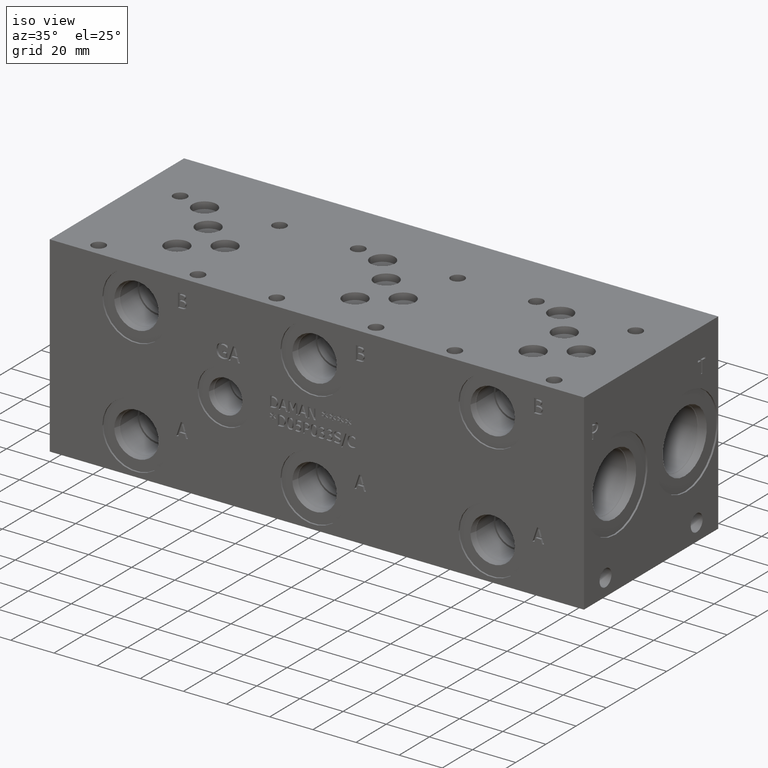
[diagram: clean part render]
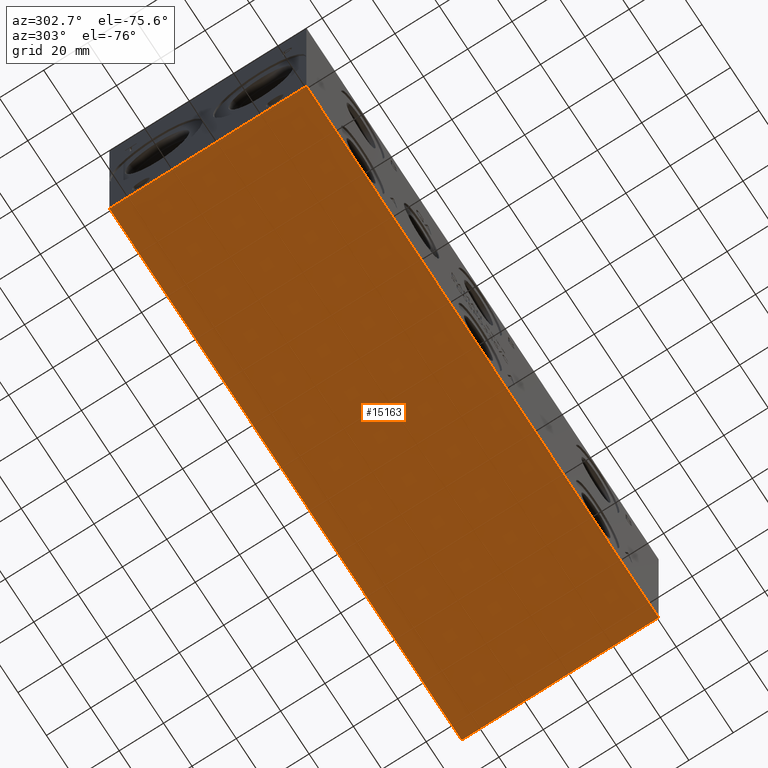
[diagram: tour spotlight — one face highlighted and labeled with its STEP entity id]
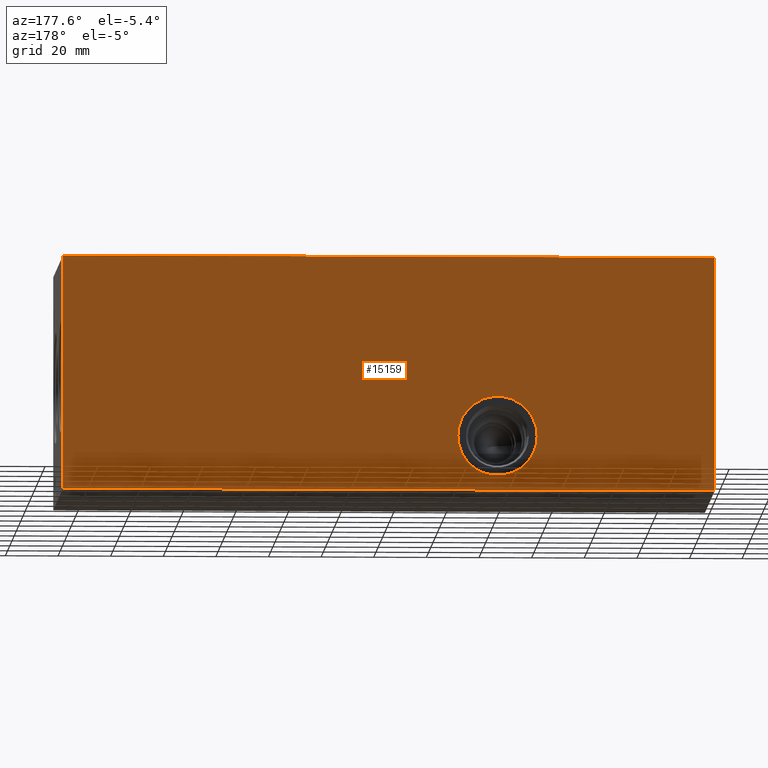
[diagram: tour spotlight — one face highlighted and labeled with its STEP entity id]
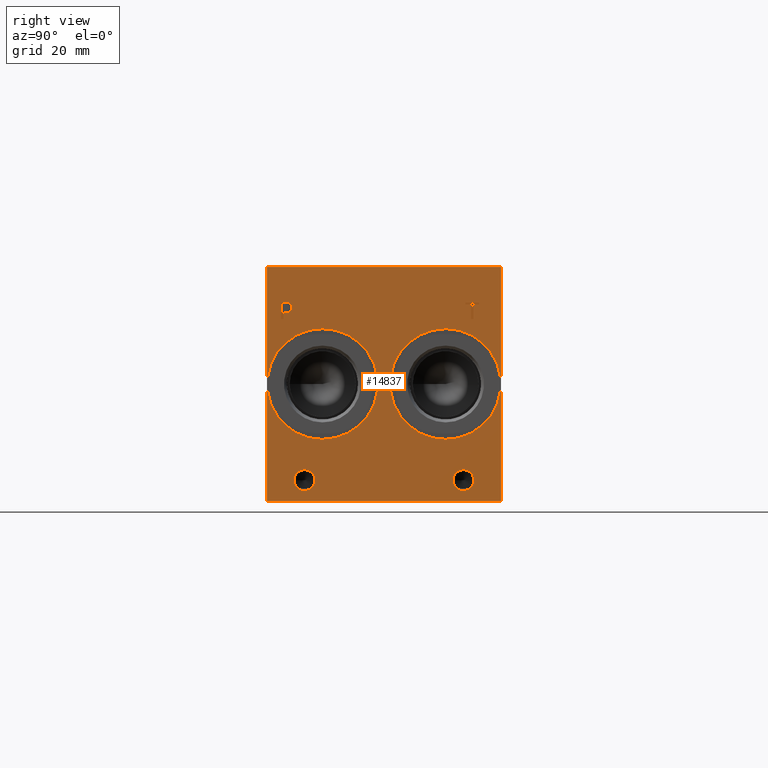
[diagram: tour spotlight — one face highlighted and labeled with its STEP entity id]
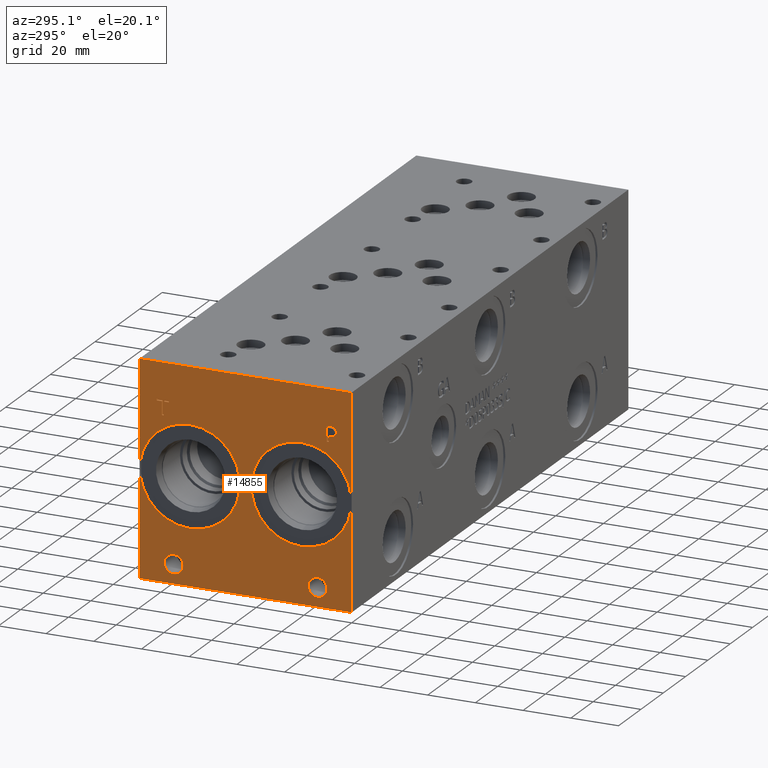
[diagram: tour spotlight — one face highlighted and labeled with its STEP entity id]
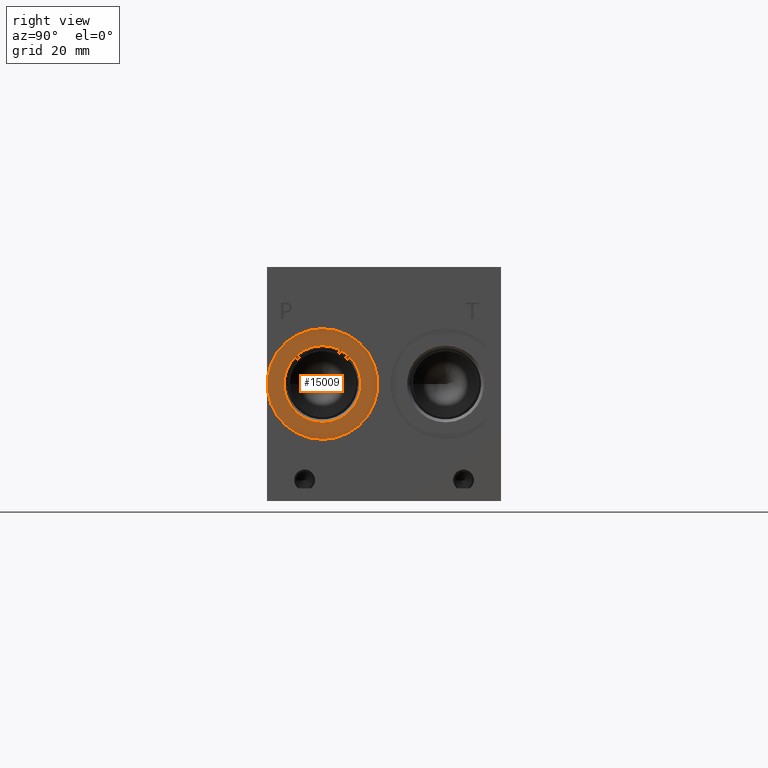
[diagram: tour spotlight — one face highlighted and labeled with its STEP entity id]
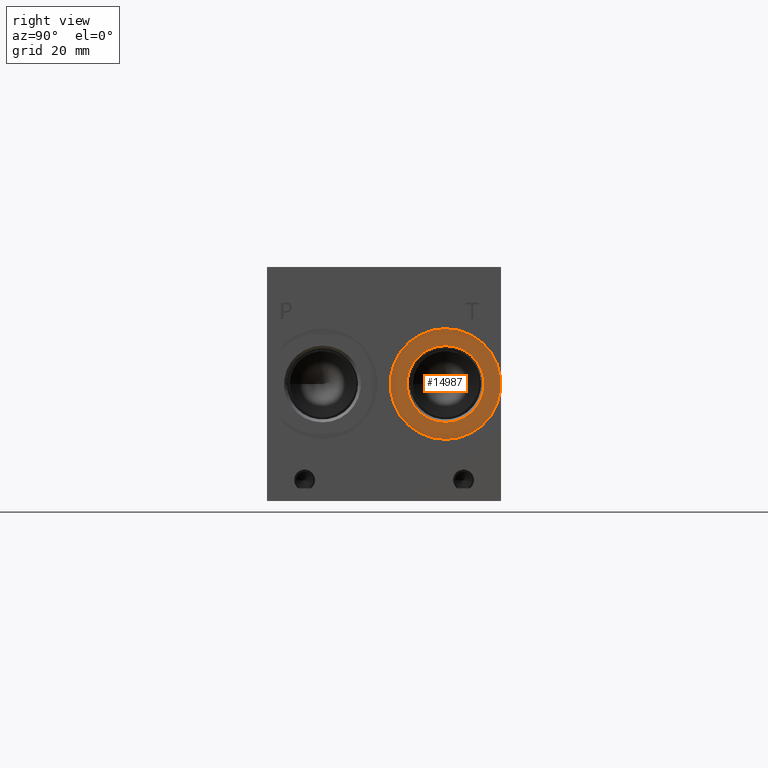
[diagram: tour spotlight — one face highlighted and labeled with its STEP entity id]
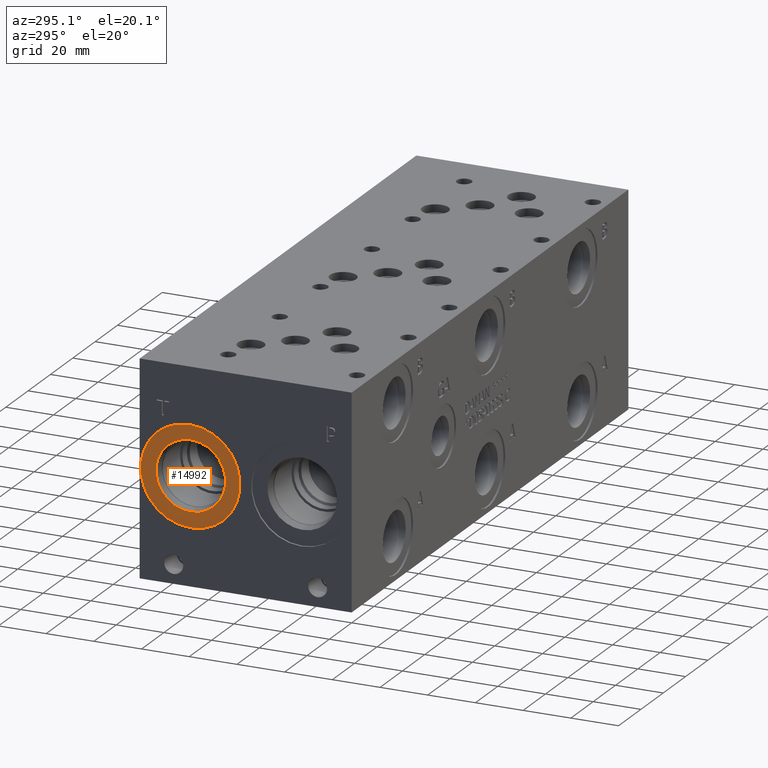
[diagram: tour spotlight — one face highlighted and labeled with its STEP entity id]
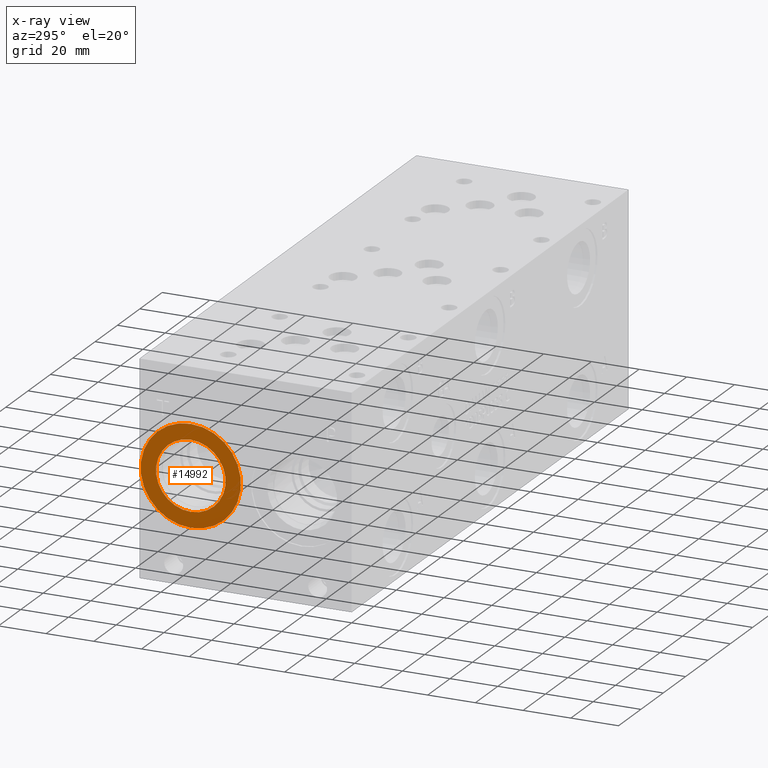
[diagram: x-ray of the same camera — body ghosted, this tour face saturated]
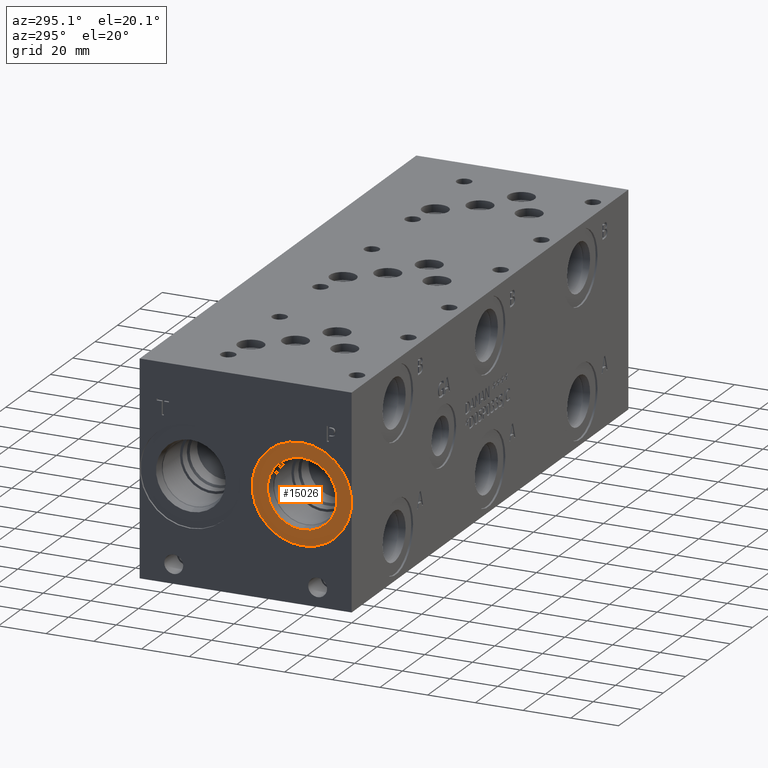
[diagram: tour spotlight — one face highlighted and labeled with its STEP entity id]
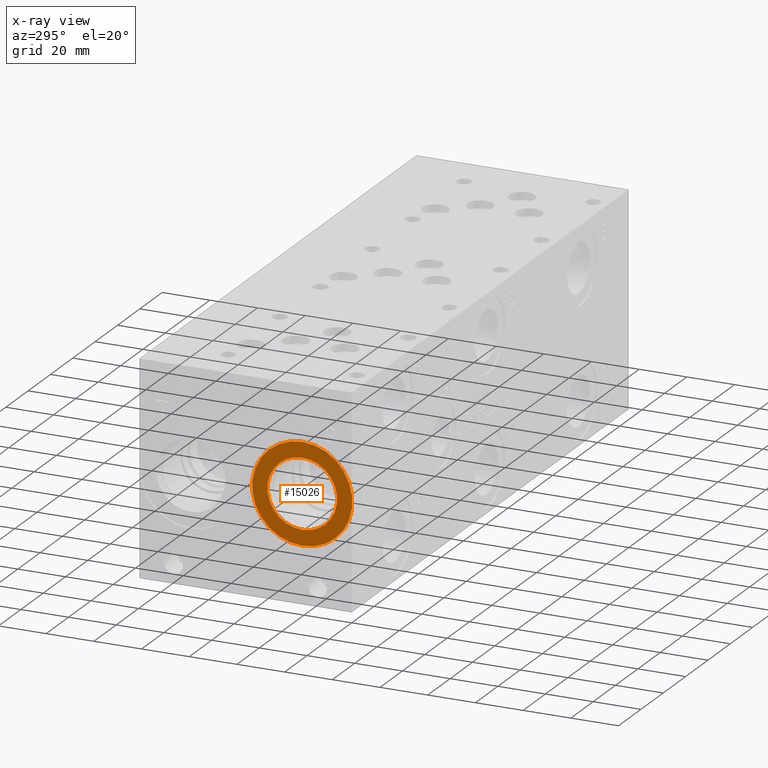
[diagram: x-ray of the same camera — body ghosted, this tour face saturated]
A machine part: a face-by-face anatomy tour. The part has 785 B-rep faces; the first image is the clean iso view, then the 8 largest visible faces are spotlighted one at a time (largest first), each with its STEP entity span.

Face 1 — auxiliary view, entity #15163. In plain terms, the highlighted planar face has unit normal (0, 0, 1).
Definition (entity closure, byte-faithful):
#2119=FACE_OUTER_BOUND('',#3035,.T.);
#3035=EDGE_LOOP('',(#13436,#13437,#13438,#13439));
#3069=LINE('',#19500,#4375);
#3990=LINE('',#24305,#5296);
#4025=LINE('',#24528,#5331);
#4340=LINE('',#26418,#5646);
#4375=VECTOR('',#16220,10.);
#5296=VECTOR('',#17727,10.);
#5331=VECTOR('',#17798,10.);
#5646=VECTOR('',#19419,10.);
#5670=VERTEX_POINT('',#19498);
#5671=VERTEX_POINT('',#19499);
#6542=VERTEX_POINT('',#24304);
#6584=VERTEX_POINT('',#24527);
#7140=EDGE_CURVE('',#5670,#5671,#3069,.T.);
#8421=EDGE_CURVE('',#5671,#6542,#3990,.T.);
#8480=EDGE_CURVE('',#6584,#5670,#4025,.T.);
#9216=EDGE_CURVE('',#6542,#6584,#4340,.T.);
#13436=ORIENTED_EDGE('',*,*,#7140,.F.);
#13437=ORIENTED_EDGE('',*,*,#8480,.F.);
#13438=ORIENTED_EDGE('',*,*,#9216,.F.);
#13439=ORIENTED_EDGE('',*,*,#8421,.F.);
#13839=PLANE('',#16158);
#15163=ADVANCED_FACE('',(#2119),#13839,.F.);
#16158=AXIS2_PLACEMENT_3D('',#26423,#19427,#19428);
#16220=DIRECTION('',(1.,0.,0.));
#17727=DIRECTION('',(0.,1.,0.));
#17798=DIRECTION('',(0.,-1.,0.));
#19419=DIRECTION('',(-1.,0.,0.));
#19427=DIRECTION('center_axis',(0.,0.,1.));
#19428=DIRECTION('ref_axis',(1.,0.,0.));
#19498=CARTESIAN_POINT('',(0.,0.,0.));
#19499=CARTESIAN_POINT('',(247.65,0.,0.));
#19500=CARTESIAN_POINT('',(0.,0.,0.));
#24304=CARTESIAN_POINT('',(247.65,88.9,0.));
#24305=CARTESIAN_POINT('',(247.65,0.,0.));
#24527=CARTESIAN_POINT('',(0.,88.9,0.));
#24528=CARTESIAN_POINT('',(0.,88.9,0.));
#26418=CARTESIAN_POINT('',(247.65,88.9,0.));
#26423=CARTESIAN_POINT('Origin',(123.825,44.45,0.));

Face 2 — auxiliary view, entity #15159. In plain terms, the highlighted planar face has unit normal (0, 1, 0).
Definition (entity closure, byte-faithful):
#429=CIRCLE('',#15563,15.08);
#430=CIRCLE('',#15564,15.08);
#1310=FACE_BOUND('',#3007,.T.);
#2115=FACE_OUTER_BOUND('',#3006,.T.);
#3006=EDGE_LOOP('',(#13364,#13365,#13366,#13367));
#3007=EDGE_LOOP('',(#13368,#13369));
#3991=LINE('',#24307,#5297);
#4027=LINE('',#24531,#5333);
#4340=LINE('',#26418,#5646);
#4341=LINE('',#26419,#5647);
#5297=VECTOR('',#17728,10.);
#5333=VECTOR('',#17800,10.);
#5646=VECTOR('',#19419,10.);
#5647=VECTOR('',#19420,10.);
#6542=VERTEX_POINT('',#24304);
#6543=VERTEX_POINT('',#24306);
#6584=VERTEX_POINT('',#24527);
#6585=VERTEX_POINT('',#24529);
#6698=VERTEX_POINT('',#25235);
#6699=VERTEX_POINT('',#25236);
#8422=EDGE_CURVE('',#6542,#6543,#3991,.T.);
#8482=EDGE_CURVE('',#6584,#6585,#4027,.T.);
#8665=EDGE_CURVE('',#6698,#6699,#429,.T.);
#8666=EDGE_CURVE('',#6699,#6698,#430,.T.);
#9216=EDGE_CURVE('',#6542,#6584,#4340,.T.);
#9217=EDGE_CURVE('',#6543,#6585,#4341,.T.);
#13364=ORIENTED_EDGE('',*,*,#9216,.T.);
#13365=ORIENTED_EDGE('',*,*,#8482,.T.);
#13366=ORIENTED_EDGE('',*,*,#9217,.F.);
#13367=ORIENTED_EDGE('',*,*,#8422,.F.);
#13368=ORIENTED_EDGE('',*,*,#8665,.T.);
#13369=ORIENTED_EDGE('',*,*,#8666,.T.);
#13835=PLANE('',#16154);
#15159=ADVANCED_FACE('',(#2115,#1310),#13835,.T.);
#15563=AXIS2_PLACEMENT_3D('',#25237,#18053,#18054);
#15564=AXIS2_PLACEMENT_3D('',#25238,#18055,#18056);
#16154=AXIS2_PLACEMENT_3D('',#26417,#19417,#19418);
#17728=DIRECTION('',(0.,0.,1.));
#17800=DIRECTION('',(0.,0.,1.));
#18053=DIRECTION('center_axis',(0.,-1.,0.));
#18054=DIRECTION('ref_axis',(1.,0.,0.));
#18055=DIRECTION('center_axis',(0.,-1.,0.));
#18056=DIRECTION('ref_axis',(1.,0.,0.));
#19417=DIRECTION('center_axis',(0.,1.,0.));
#19418=DIRECTION('ref_axis',(-1.,0.,0.));
#19419=DIRECTION('',(-1.,0.,0.));
#19420=DIRECTION('',(-1.,0.,0.));
#24304=CARTESIAN_POINT('',(247.65,88.9,0.));
#24306=CARTESIAN_POINT('',(247.65,88.9,88.9));
#24307=CARTESIAN_POINT('',(247.65,88.9,0.));
#24527=CARTESIAN_POINT('',(0.,88.9,0.));
#24529=CARTESIAN_POINT('',(0.,88.9,88.9));
#24531=CARTESIAN_POINT('',(0.,88.9,0.));
#25235=CARTESIAN_POINT('',(97.63,88.9,20.6502));
#25236=CARTESIAN_POINT('',(67.47,88.9,20.6502));
#25237=CARTESIAN_POINT('Origin',(82.55,88.9,20.6502));
#25238=CARTESIAN_POINT('Origin',(82.55,88.9,20.6502));
#26417=CARTESIAN_POINT('Origin',(247.65,88.9,0.));
#26418=CARTESIAN_POINT('',(247.65,88.9,0.));
#26419=CARTESIAN_POINT('',(247.65,88.9,88.9));

Face 3 — right view, entity #14837. In plain terms, the highlighted planar face has unit normal (1, 0, 0).
Definition (entity closure, byte-faithful):
#413=CIRCLE('',#15484,21.0185);
#414=CIRCLE('',#15485,21.0185);
#415=CIRCLE('',#15486,21.0185);
#416=CIRCLE('',#15487,21.0185);
#417=CIRCLE('',#15488,3.9624);
#418=CIRCLE('',#15489,3.9624);
#419=CIRCLE('',#15490,3.9624);
#420=CIRCLE('',#15491,3.9624);
#1136=B_SPLINE_CURVE_WITH_KNOTS('',2,(#24206,#24207,#24208,#24209),
 .UNSPECIFIED.,.F.,.F.,(3,1,3),(0.,1.,2.),.UNSPECIFIED.);
#1138=B_SPLINE_CURVE_WITH_KNOTS('',2,(#24227,#24228,#24229,#24230),
 .UNSPECIFIED.,.F.,.F.,(3,1,3),(0.,1.,2.),.UNSPECIFIED.);
#1140=B_SPLINE_CURVE_WITH_KNOTS('',2,(#24276,#24277,#24278,#24279),
 .UNSPECIFIED.,.F.,.F.,(3,1,3),(0.,1.,2.),.UNSPECIFIED.);
#1142=B_SPLINE_CURVE_WITH_KNOTS('',2,(#24294,#24295,#24296,#24297),
 .UNSPECIFIED.,.F.,.F.,(3,1,3),(0.,1.,2.),.UNSPECIFIED.);
#1251=FACE_BOUND('',#2626,.T.);
#1252=FACE_BOUND('',#2627,.T.);
#1253=FACE_BOUND('',#2628,.T.);
#1254=FACE_BOUND('',#2629,.T.);
#1255=FACE_BOUND('',#2630,.T.);
#1256=FACE_BOUND('',#2631,.T.);
#1793=FACE_OUTER_BOUND('',#2625,.T.);
#2625=EDGE_LOOP('',(#11757,#11758,#11759,#11760));
#2626=EDGE_LOOP('',(#11761,#11762,#11763,#11764,#11765,#11766,#11767,#11768));
#2627=EDGE_LOOP('',(#11769,#11770));
#2628=EDGE_LOOP('',(#11771,#11772));
#2629=EDGE_LOOP('',(#11773,#11774));
#2630=EDGE_LOOP('',(#11775,#11776));
#2631=EDGE_LOOP('',(#11777,#11778,#11779,#11780,#11781,#11782,#11783,#11784,
#11785));
#3070=LINE('',#19502,#4376);
#3910=LINE('',#24007,#5216);
#3914=LINE('',#24015,#5220);
#3917=LINE('',#24021,#5223);
#3920=LINE('',#24027,#5226);
#3923=LINE('',#24033,#5229);
#3926=LINE('',#24039,#5232);
#3929=LINE('',#24045,#5235);
#3932=LINE('',#24050,#5238);
#3974=LINE('',#24239,#5280);
#3977=LINE('',#24245,#5283);
#3980=LINE('',#24251,#5286);
#3983=LINE('',#24257,#5289);
#3986=LINE('',#24263,#5292);
#3990=LINE('',#24305,#5296);
#3991=LINE('',#24307,#5297);
#3992=LINE('',#24308,#5298);
#4376=VECTOR('',#16221,10.);
#5216=VECTOR('',#17593,10.);
#5220=VECTOR('',#17599,10.);
#5223=VECTOR('',#17604,10.);
#5226=VECTOR('',#17609,10.);
#5229=VECTOR('',#17614,10.);
#5232=VECTOR('',#17619,10.);
#5235=VECTOR('',#17624,10.);
#5238=VECTOR('',#17629,10.);
#5280=VECTOR('',#17699,10.);
#5283=VECTOR('',#17704,10.);
#5286=VECTOR('',#17709,10.);
#5289=VECTOR('',#17714,10.);
#5292=VECTOR('',#17719,10.);
#5296=VECTOR('',#17727,10.);
#5297=VECTOR('',#17728,10.);
#5298=VECTOR('',#17729,10.);
#5671=VERTEX_POINT('',#19499);
#5672=VERTEX_POINT('',#19501);
#6478=VERTEX_POINT('',#24005);
#6479=VERTEX_POINT('',#24006);
#6482=VERTEX_POINT('',#24014);
#6484=VERTEX_POINT('',#24020);
#6486=VERTEX_POINT('',#24026);
#6488=VERTEX_POINT('',#24032);
#6490=VERTEX_POINT('',#24038);
#6492=VERTEX_POINT('',#24044);
#6524=VERTEX_POINT('',#24204);
#6525=VERTEX_POINT('',#24205);
#6528=VERTEX_POINT('',#24226);
#6530=VERTEX_POINT('',#24238);
#6532=VERTEX_POINT('',#24244);
#6534=VERTEX_POINT('',#24250);
#6536=VERTEX_POINT('',#24256);
#6538=VERTEX_POINT('',#24262);
#6540=VERTEX_POINT('',#24275);
#6542=VERTEX_POINT('',#24304);
#6543=VERTEX_POINT('',#24306);
#6544=VERTEX_POINT('',#24309);
#6545=VERTEX_POINT('',#24310);
#6546=VERTEX_POINT('',#24313);
#6547=VERTEX_POINT('',#24314);
#6548=VERTEX_POINT('',#24317);
#6549=VERTEX_POINT('',#24318);
#6550=VERTEX_POINT('',#24321);
#6551=VERTEX_POINT('',#24322);
#7141=EDGE_CURVE('',#5671,#5672,#3070,.T.);
#8325=EDGE_CURVE('',#6478,#6479,#3910,.T.);
#8329=EDGE_CURVE('',#6482,#6478,#3914,.T.);
#8332=EDGE_CURVE('',#6484,#6482,#3917,.T.);
#8335=EDGE_CURVE('',#6486,#6484,#3920,.T.);
#8338=EDGE_CURVE('',#6488,#6486,#3923,.T.);
#8341=EDGE_CURVE('',#6490,#6488,#3926,.T.);
#8344=EDGE_CURVE('',#6492,#6490,#3929,.T.);
#8347=EDGE_CURVE('',#6479,#6492,#3932,.T.);
#8394=EDGE_CURVE('',#6524,#6525,#1136,.T.);
#8398=EDGE_CURVE('',#6528,#6524,#1138,.T.);
#8401=EDGE_CURVE('',#6530,#6528,#3974,.T.);
#8404=EDGE_CURVE('',#6532,#6530,#3977,.T.);
#8407=EDGE_CURVE('',#6534,#6532,#3980,.T.);
#8410=EDGE_CURVE('',#6536,#6534,#3983,.T.);
#8413=EDGE_CURVE('',#6538,#6536,#3986,.T.);
#8416=EDGE_CURVE('',#6540,#6538,#1140,.T.);
#8419=EDGE_CURVE('',#6525,#6540,#1142,.T.);
#8421=EDGE_CURVE('',#5671,#6542,#3990,.T.);
#8422=EDGE_CURVE('',#6542,#6543,#3991,.T.);
#8423=EDGE_CURVE('',#5672,#6543,#3992,.T.);
#8424=EDGE_CURVE('',#6544,#6545,#413,.T.);
#8425=EDGE_CURVE('',#6545,#6544,#414,.T.);
#8426=EDGE_CURVE('',#6546,#6547,#415,.T.);
#8427=EDGE_CURVE('',#6547,#6546,#416,.T.);
#8428=EDGE_CURVE('',#6548,#6549,#417,.T.);
#8429=EDGE_CURVE('',#6549,#6548,#418,.T.);
#8430=EDGE_CURVE('',#6550,#6551,#419,.T.);
#8431=EDGE_CURVE('',#6551,#6550,#420,.T.);
#11757=ORIENTED_EDGE('',*,*,#8421,.T.);
#11758=ORIENTED_EDGE('',*,*,#8422,.T.);
#11759=ORIENTED_EDGE('',*,*,#8423,.F.);
#11760=ORIENTED_EDGE('',*,*,#7141,.F.);
#11761=ORIENTED_EDGE('',*,*,#8325,.T.);
#11762=ORIENTED_EDGE('',*,*,#8347,.T.);
#11763=ORIENTED_EDGE('',*,*,#8344,.T.);
#11764=ORIENTED_EDGE('',*,*,#8341,.T.);
#11765=ORIENTED_EDGE('',*,*,#8338,.T.);
#11766=ORIENTED_EDGE('',*,*,#8335,.T.);
#11767=ORIENTED_EDGE('',*,*,#8332,.T.);
#11768=ORIENTED_EDGE('',*,*,#8329,.T.);
#11769=ORIENTED_EDGE('',*,*,#8424,.T.);
#11770=ORIENTED_EDGE('',*,*,#8425,.T.);
#11771=ORIENTED_EDGE('',*,*,#8426,.T.);
#11772=ORIENTED_EDGE('',*,*,#8427,.T.);
#11773=ORIENTED_EDGE('',*,*,#8428,.T.);
#11774=ORIENTED_EDGE('',*,*,#8429,.T.);
#11775=ORIENTED_EDGE('',*,*,#8430,.T.);
#11776=ORIENTED_EDGE('',*,*,#8431,.T.);
#11777=ORIENTED_EDGE('',*,*,#8394,.T.);
#11778=ORIENTED_EDGE('',*,*,#8419,.T.);
#11779=ORIENTED_EDGE('',*,*,#8416,.T.);
#11780=ORIENTED_EDGE('',*,*,#8413,.T.);
#11781=ORIENTED_EDGE('',*,*,#8410,.T.);
#11782=ORIENTED_EDGE('',*,*,#8407,.T.);
#11783=ORIENTED_EDGE('',*,*,#8404,.T.);
#11784=ORIENTED_EDGE('',*,*,#8401,.T.);
#11785=ORIENTED_EDGE('',*,*,#8398,.T.);
#13731=PLANE('',#15483);
#14837=ADVANCED_FACE('',(#1793,#1251,#1252,#1253,#1254,#1255,#1256),#13731,
 .T.);
#15483=AXIS2_PLACEMENT_3D('',#24303,#17725,#17726);
#15484=AXIS2_PLACEMENT_3D('',#24311,#17730,#17731);
#15485=AXIS2_PLACEMENT_3D('',#24312,#17732,#17733);
#15486=AXIS2_PLACEMENT_3D('',#24315,#17734,#17735);
#15487=AXIS2_PLACEMENT_3D('',#24316,#17736,#17737);
#15488=AXIS2_PLACEMENT_3D('',#24319,#17738,#17739);
#15489=AXIS2_PLACEMENT_3D('',#24320,#17740,#17741);
#15490=AXIS2_PLACEMENT_3D('',#24323,#17742,#17743);
#15491=AXIS2_PLACEMENT_3D('',#24324,#17744,#17745);
#16221=DIRECTION('',(0.,0.,1.));
#17593=DIRECTION('',(0.,-1.,0.));
#17599=DIRECTION('',(0.,0.,-1.));
#17604=DIRECTION('',(0.,-1.,0.));
#17609=DIRECTION('',(0.,0.,-1.));
#17614=DIRECTION('',(0.,1.,0.));
#17619=DIRECTION('',(0.,0.,1.));
#17624=DIRECTION('',(0.,-1.,0.));
#17629=DIRECTION('',(0.,0.,1.));
#17699=DIRECTION('',(0.,1.,0.));
#17704=DIRECTION('',(0.,0.,1.));
#17709=DIRECTION('',(0.,-1.,0.));
#17714=DIRECTION('',(0.,0.,-1.));
#17719=DIRECTION('',(0.,-1.,0.));
#17725=DIRECTION('center_axis',(1.,0.,0.));
#17726=DIRECTION('ref_axis',(0.,1.,0.));
#17727=DIRECTION('',(0.,1.,0.));
#17728=DIRECTION('',(0.,0.,1.));
#17729=DIRECTION('',(0.,1.,0.));
#17730=DIRECTION('center_axis',(-1.,0.,0.));
#17731=DIRECTION('ref_axis',(0.,0.,-1.));
#17732=DIRECTION('center_axis',(-1.,0.,0.));
#17733=DIRECTION('ref_axis',(0.,0.,-1.));
#17734=DIRECTION('center_axis',(-1.,0.,0.));
#17735=DIRECTION('ref_axis',(0.,0.,-1.));
#17736=DIRECTION('center_axis',(-1.,0.,0.));
#17737=DIRECTION('ref_axis',(0.,0.,-1.));
#17738=DIRECTION('center_axis',(-1.,0.,0.));
#17739=DIRECTION('ref_axis',(0.,1.,0.));
#17740=DIRECTION('center_axis',(-1.,0.,0.));
#17741=DIRECTION('ref_axis',(0.,1.,0.));
#17742=DIRECTION('center_axis',(-1.,0.,0.));
#17743=DIRECTION('ref_axis',(0.,1.,0.));
#17744=DIRECTION('center_axis',(-1.,0.,0.));
#17745=DIRECTION('ref_axis',(0.,1.,0.));
#19499=CARTESIAN_POINT('',(247.65,0.,0.));
#19501=CARTESIAN_POINT('',(247.65,0.,88.9));
#19502=CARTESIAN_POINT('',(247.65,0.,0.));
#24005=CARTESIAN_POINT('',(247.65,78.375415271453,69.05625));
#24006=CARTESIAN_POINT('',(247.65,77.5314930799135,69.05625));
#24007=CARTESIAN_POINT('',(247.65,39.1877076357265,69.05625));
#24014=CARTESIAN_POINT('',(247.65,78.375415271453,74.6549533194816));
#24015=CARTESIAN_POINT('',(247.65,78.375415271453,37.3274766597408));
#24020=CARTESIAN_POINT('',(247.65,80.5058042183881,74.6549533194816));
#24021=CARTESIAN_POINT('',(247.65,40.252902109194,74.6549533194816));
#24026=CARTESIAN_POINT('',(247.65,80.5058042183881,75.4062499046326));
#24027=CARTESIAN_POINT('',(247.65,80.5058042183881,37.7031249523163));
#24032=CARTESIAN_POINT('',(247.65,75.4011041329784,75.4062499046326));
#24033=CARTESIAN_POINT('',(247.65,37.7005520664892,75.4062499046326));
#24038=CARTESIAN_POINT('',(247.65,75.4011041329784,74.6549533194816));
#24039=CARTESIAN_POINT('',(247.65,75.4011041329784,37.3274766597408));
#24044=CARTESIAN_POINT('',(247.65,77.5314930799135,74.6549533194816));
#24045=CARTESIAN_POINT('',(247.65,38.7657465399567,74.6549533194816));
#24050=CARTESIAN_POINT('',(247.65,77.5314930799135,34.528125));
#24204=CARTESIAN_POINT('',(247.65,8.66306720235939,75.0100181439707));
#24205=CARTESIAN_POINT('',(247.65,9.41950965453199,73.491987372604));
#24206=CARTESIAN_POINT('Ctrl Pts',(247.65,8.66306720235939,75.0100181439707));
#24207=CARTESIAN_POINT('Ctrl Pts',(247.65,9.01813202684857,74.7681623939564));
#24208=CARTESIAN_POINT('Ctrl Pts',(247.65,9.41950965453199,74.0220116758269));
#24209=CARTESIAN_POINT('Ctrl Pts',(247.65,9.41950965453199,73.491987372604));
#24226=CARTESIAN_POINT('',(247.65,7.0009521543883,75.4062499046326));
#24227=CARTESIAN_POINT('Ctrl Pts',(247.65,7.0009521543883,75.4062499046326));
#24228=CARTESIAN_POINT('Ctrl Pts',(247.65,7.56699752676236,75.4062499046326));
#24229=CARTESIAN_POINT('Ctrl Pts',(247.65,8.35946104808603,75.2209986918556));
#24230=CARTESIAN_POINT('Ctrl Pts',(247.65,8.66306720235939,75.0100181439707));
#24238=CARTESIAN_POINT('',(247.65,5.40573337769779,75.4062499046326));
#24239=CARTESIAN_POINT('',(247.65,2.70286668884889,75.4062499046326));
#24244=CARTESIAN_POINT('',(247.65,5.40573337769779,69.05625));
#24245=CARTESIAN_POINT('',(247.65,5.40573337769779,34.528125));
#24250=CARTESIAN_POINT('',(247.65,6.24965556923729,69.05625));
#24251=CARTESIAN_POINT('',(247.65,3.12482778461864,69.05625));
#24256=CARTESIAN_POINT('',(247.65,6.24965556923729,71.4233488299279));
#24257=CARTESIAN_POINT('',(247.65,6.24965556923729,35.7116744149639));
#24262=CARTESIAN_POINT('',(247.65,6.96493108523723,71.4233488299279));
#24263=CARTESIAN_POINT('',(247.65,3.48246554261861,71.4233488299279));
#24275=CARTESIAN_POINT('',(247.65,8.8637560162011,72.0820198086904));
#24276=CARTESIAN_POINT('Ctrl Pts',(247.65,8.8637560162011,72.0820198086904));
#24277=CARTESIAN_POINT('Ctrl Pts',(247.65,8.53442052681983,71.7578301863307));
#24278=CARTESIAN_POINT('Ctrl Pts',(247.65,7.64418553208609,71.4233488299279));
#24279=CARTESIAN_POINT('Ctrl Pts',(247.65,6.96493108523723,71.4233488299279));
#24294=CARTESIAN_POINT('Ctrl Pts',(247.65,9.41950965453199,73.491987372604));
#24295=CARTESIAN_POINT('Ctrl Pts',(247.65,9.41950965453199,73.0803180108774));
#24296=CARTESIAN_POINT('Ctrl Pts',(247.65,9.1261952343018,72.3393131597695));
#24297=CARTESIAN_POINT('Ctrl Pts',(247.65,8.8637560162011,72.0820198086904));
#24303=CARTESIAN_POINT('Origin',(247.65,0.,0.));
#24304=CARTESIAN_POINT('',(247.65,88.9,0.));
#24305=CARTESIAN_POINT('',(247.65,0.,0.));
#24306=CARTESIAN_POINT('',(247.65,88.9,88.9));
#24307=CARTESIAN_POINT('',(247.65,88.9,0.));
#24308=CARTESIAN_POINT('',(247.65,0.,88.9));
#24309=CARTESIAN_POINT('',(247.65,21.082,23.4315));
#24310=CARTESIAN_POINT('',(247.65,21.082,65.4685));
#24311=CARTESIAN_POINT('Origin',(247.65,21.082,44.45));
#24312=CARTESIAN_POINT('Origin',(247.65,21.082,44.45));
#24313=CARTESIAN_POINT('',(247.65,67.818,23.4315));
#24314=CARTESIAN_POINT('',(247.65,67.818,65.4685));
#24315=CARTESIAN_POINT('Origin',(247.65,67.818,44.45));
#24316=CARTESIAN_POINT('Origin',(247.65,67.818,44.45));
#24317=CARTESIAN_POINT('',(247.65,78.5876,7.9248));
#24318=CARTESIAN_POINT('',(247.65,70.6628,7.9248));
#24319=CARTESIAN_POINT('Origin',(247.65,74.6252,7.9248));
#24320=CARTESIAN_POINT('Origin',(247.65,74.6252,7.9248));
#24321=CARTESIAN_POINT('',(247.65,18.2372,7.9248));
#24322=CARTESIAN_POINT('',(247.65,10.3124,7.9248));
#24323=CARTESIAN_POINT('Origin',(247.65,14.2748,7.9248));
#24324=CARTESIAN_POINT('Origin',(247.65,14.2748,7.9248));

Face 4 — auxiliary view, entity #14855. In plain terms, the highlighted planar face has unit normal (-1, 0, 0).
Definition (entity closure, byte-faithful):
#421=CIRCLE('',#15502,21.0185);
#422=CIRCLE('',#15503,21.0185);
#423=CIRCLE('',#15504,21.0185);
#424=CIRCLE('',#15505,21.0185);
#425=CIRCLE('',#15506,3.9624);
#426=CIRCLE('',#15507,3.9624);
#427=CIRCLE('',#15508,3.9624);
#428=CIRCLE('',#15509,3.9624);
#1152=B_SPLINE_CURVE_WITH_KNOTS('',2,(#24429,#24430,#24431,#24432),
 .UNSPECIFIED.,.F.,.F.,(3,1,3),(0.,1.,2.),.UNSPECIFIED.);
#1154=B_SPLINE_CURVE_WITH_KNOTS('',2,(#24450,#24451,#24452,#24453),
 .UNSPECIFIED.,.F.,.F.,(3,1,3),(0.,1.,2.),.UNSPECIFIED.);
#1156=B_SPLINE_CURVE_WITH_KNOTS('',2,(#24499,#24500,#24501,#24502),
 .UNSPECIFIED.,.F.,.F.,(3,1,3),(0.,1.,2.),.UNSPECIFIED.);
#1158=B_SPLINE_CURVE_WITH_KNOTS('',2,(#24517,#24518,#24519,#24520),
 .UNSPECIFIED.,.F.,.F.,(3,1,3),(0.,1.,2.),.UNSPECIFIED.);
#1258=FACE_BOUND('',#2651,.T.);
#1259=FACE_BOUND('',#2652,.T.);
#1260=FACE_BOUND('',#2653,.T.);
#1261=FACE_BOUND('',#2654,.T.);
#1262=FACE_BOUND('',#2655,.T.);
#1263=FACE_BOUND('',#2656,.T.);
#1811=FACE_OUTER_BOUND('',#2650,.T.);
#2650=EDGE_LOOP('',(#11866,#11867,#11868,#11869));
#2651=EDGE_LOOP('',(#11870,#11871,#11872,#11873,#11874,#11875,#11876,#11877));
#2652=EDGE_LOOP('',(#11878,#11879));
#2653=EDGE_LOOP('',(#11880,#11881));
#2654=EDGE_LOOP('',(#11882,#11883));
#2655=EDGE_LOOP('',(#11884,#11885));
#2656=EDGE_LOOP('',(#11886,#11887,#11888,#11889,#11890,#11891,#11892,#11893,
#11894));
#3072=LINE('',#19505,#4378);
#3934=LINE('',#24056,#5240);
#3938=LINE('',#24064,#5244);
#3941=LINE('',#24070,#5247);
#3944=LINE('',#24076,#5250);
#3947=LINE('',#24082,#5253);
#3950=LINE('',#24088,#5256);
#3953=LINE('',#24094,#5259);
#3956=LINE('',#24099,#5262);
#4009=LINE('',#24462,#5315);
#4012=LINE('',#24468,#5318);
#4015=LINE('',#24474,#5321);
#4018=LINE('',#24480,#5324);
#4021=LINE('',#24486,#5327);
#4025=LINE('',#24528,#5331);
#4026=LINE('',#24530,#5332);
#4027=LINE('',#24531,#5333);
#4378=VECTOR('',#16223,10.);
#5240=VECTOR('',#17635,10.);
#5244=VECTOR('',#17641,10.);
#5247=VECTOR('',#17646,10.);
#5250=VECTOR('',#17651,10.);
#5253=VECTOR('',#17656,10.);
#5256=VECTOR('',#17661,10.);
#5259=VECTOR('',#17666,10.);
#5262=VECTOR('',#17671,10.);
#5315=VECTOR('',#17770,10.);
#5318=VECTOR('',#17775,10.);
#5321=VECTOR('',#17780,10.);
#5324=VECTOR('',#17785,10.);
#5327=VECTOR('',#17790,10.);
#5331=VECTOR('',#17798,10.);
#5332=VECTOR('',#17799,10.);
#5333=VECTOR('',#17800,10.);
#5670=VERTEX_POINT('',#19498);
#5673=VERTEX_POINT('',#19503);
#6494=VERTEX_POINT('',#24054);
#6495=VERTEX_POINT('',#24055);
#6498=VERTEX_POINT('',#24063);
#6500=VERTEX_POINT('',#24069);
#6502=VERTEX_POINT('',#24075);
#6504=VERTEX_POINT('',#24081);
#6506=VERTEX_POINT('',#24087);
#6508=VERTEX_POINT('',#24093);
#6566=VERTEX_POINT('',#24427);
#6567=VERTEX_POINT('',#24428);
#6570=VERTEX_POINT('',#24449);
#6572=VERTEX_POINT('',#24461);
#6574=VERTEX_POINT('',#24467);
#6576=VERTEX_POINT('',#24473);
#6578=VERTEX_POINT('',#24479);
#6580=VERTEX_POINT('',#24485);
#6582=VERTEX_POINT('',#24498);
#6584=VERTEX_POINT('',#24527);
#6585=VERTEX_POINT('',#24529);
#6586=VERTEX_POINT('',#24532);
#6587=VERTEX_POINT('',#24533);
#6588=VERTEX_POINT('',#24536);
#6589=VERTEX_POINT('',#24537);
#6590=VERTEX_POINT('',#24540);
#6591=VERTEX_POINT('',#24541);
#6592=VERTEX_POINT('',#24544);
#6593=VERTEX_POINT('',#24545);
#7143=EDGE_CURVE('',#5670,#5673,#3072,.T.);
#8349=EDGE_CURVE('',#6494,#6495,#3934,.T.);
#8353=EDGE_CURVE('',#6498,#6494,#3938,.T.);
#8356=EDGE_CURVE('',#6500,#6498,#3941,.T.);
#8359=EDGE_CURVE('',#6502,#6500,#3944,.T.);
#8362=EDGE_CURVE('',#6504,#6502,#3947,.T.);
#8365=EDGE_CURVE('',#6506,#6504,#3950,.T.);
#8368=EDGE_CURVE('',#6508,#6506,#3953,.T.);
#8371=EDGE_CURVE('',#6495,#6508,#3956,.T.);
#8453=EDGE_CURVE('',#6566,#6567,#1152,.T.);
#8457=EDGE_CURVE('',#6570,#6566,#1154,.T.);
#8460=EDGE_CURVE('',#6572,#6570,#4009,.T.);
#8463=EDGE_CURVE('',#6574,#6572,#4012,.T.);
#8466=EDGE_CURVE('',#6576,#6574,#4015,.T.);
#8469=EDGE_CURVE('',#6578,#6576,#4018,.T.);
#8472=EDGE_CURVE('',#6580,#6578,#4021,.T.);
#8475=EDGE_CURVE('',#6582,#6580,#1156,.T.);
#8478=EDGE_CURVE('',#6567,#6582,#1158,.T.);
#8480=EDGE_CURVE('',#6584,#5670,#4025,.T.);
#8481=EDGE_CURVE('',#6585,#5673,#4026,.T.);
#8482=EDGE_CURVE('',#6584,#6585,#4027,.T.);
#8483=EDGE_CURVE('',#6586,#6587,#421,.T.);
#8484=EDGE_CURVE('',#6587,#6586,#422,.T.);
#8485=EDGE_CURVE('',#6588,#6589,#423,.T.);
#8486=EDGE_CURVE('',#6589,#6588,#424,.T.);
#8487=EDGE_CURVE('',#6590,#6591,#425,.T.);
#8488=EDGE_CURVE('',#6591,#6590,#426,.T.);
#8489=EDGE_CURVE('',#6592,#6593,#427,.T.);
#8490=EDGE_CURVE('',#6593,#6592,#428,.T.);
#11866=ORIENTED_EDGE('',*,*,#8480,.T.);
#11867=ORIENTED_EDGE('',*,*,#7143,.T.);
#11868=ORIENTED_EDGE('',*,*,#8481,.F.);
#11869=ORIENTED_EDGE('',*,*,#8482,.F.);
#11870=ORIENTED_EDGE('',*,*,#8349,.T.);
#11871=ORIENTED_EDGE('',*,*,#8371,.T.);
#11872=ORIENTED_EDGE('',*,*,#8368,.T.);
#11873=ORIENTED_EDGE('',*,*,#8365,.T.);
#11874=ORIENTED_EDGE('',*,*,#8362,.T.);
#11875=ORIENTED_EDGE('',*,*,#8359,.T.);
#11876=ORIENTED_EDGE('',*,*,#8356,.T.);
#11877=ORIENTED_EDGE('',*,*,#8353,.T.);
#11878=ORIENTED_EDGE('',*,*,#8483,.T.);
#11879=ORIENTED_EDGE('',*,*,#8484,.T.);
#11880=ORIENTED_EDGE('',*,*,#8485,.T.);
#11881=ORIENTED_EDGE('',*,*,#8486,.T.);
#11882=ORIENTED_EDGE('',*,*,#8487,.T.);
#11883=ORIENTED_EDGE('',*,*,#8488,.T.);
#11884=ORIENTED_EDGE('',*,*,#8489,.T.);
#11885=ORIENTED_EDGE('',*,*,#8490,.T.);
#11886=ORIENTED_EDGE('',*,*,#8453,.T.);
#11887=ORIENTED_EDGE('',*,*,#8478,.T.);
#11888=ORIENTED_EDGE('',*,*,#8475,.T.);
#11889=ORIENTED_EDGE('',*,*,#8472,.T.);
#11890=ORIENTED_EDGE('',*,*,#8469,.T.);
#11891=ORIENTED_EDGE('',*,*,#8466,.T.);
#11892=ORIENTED_EDGE('',*,*,#8463,.T.);
#11893=ORIENTED_EDGE('',*,*,#8460,.T.);
#11894=ORIENTED_EDGE('',*,*,#8457,.T.);
#13741=PLANE('',#15501);
#14855=ADVANCED_FACE('',(#1811,#1258,#1259,#1260,#1261,#1262,#1263),#13741,
 .T.);
#15501=AXIS2_PLACEMENT_3D('',#24526,#17796,#17797);
#15502=AXIS2_PLACEMENT_3D('',#24534,#17801,#17802);
#15503=AXIS2_PLACEMENT_3D('',#24535,#17803,#17804);
#15504=AXIS2_PLACEMENT_3D('',#24538,#17805,#17806);
#15505=AXIS2_PLACEMENT_3D('',#24539,#17807,#17808);
#15506=AXIS2_PLACEMENT_3D('',#24542,#17809,#17810);
#15507=AXIS2_PLACEMENT_3D('',#24543,#17811,#17812);
#15508=AXIS2_PLACEMENT_3D('',#24546,#17813,#17814);
#15509=AXIS2_PLACEMENT_3D('',#24547,#17815,#17816);
#16223=DIRECTION('',(0.,0.,1.));
#17635=DIRECTION('',(0.,1.,1.0524411238433E-14));
#17641=DIRECTION('',(0.,3.17280044688052E-15,-1.));
#17646=DIRECTION('',(0.,1.,4.16909044227778E-15));
#17651=DIRECTION('',(0.,0.,-1.));
#17656=DIRECTION('',(0.,-1.,-3.47984565141734E-15));
#17661=DIRECTION('',(0.,0.,1.));
#17666=DIRECTION('',(0.,1.,0.));
#17671=DIRECTION('',(0.,-3.17280044688052E-15,1.));
#17770=DIRECTION('',(0.,-1.,-5.56775304226775E-15));
#17775=DIRECTION('',(0.,-3.14708893596576E-15,1.));
#17780=DIRECTION('',(0.,1.,0.));
#17785=DIRECTION('',(0.,3.75218139804999E-15,-1.));
#17790=DIRECTION('',(0.,1.,1.24172909575755E-14));
#17796=DIRECTION('center_axis',(-1.,0.,0.));
#17797=DIRECTION('ref_axis',(0.,-1.,0.));
#17798=DIRECTION('',(0.,-1.,0.));
#17799=DIRECTION('',(0.,-1.,0.));
#17800=DIRECTION('',(0.,0.,1.));
#17801=DIRECTION('center_axis',(1.,0.,0.));
#17802=DIRECTION('ref_axis',(0.,0.,1.));
#17803=DIRECTION('center_axis',(1.,0.,0.));
#17804=DIRECTION('ref_axis',(0.,0.,1.));
#17805=DIRECTION('center_axis',(1.,0.,0.));
#17806=DIRECTION('ref_axis',(0.,0.,1.));
#17807=DIRECTION('center_axis',(1.,0.,0.));
#17808=DIRECTION('ref_axis',(0.,0.,1.));
#17809=DIRECTION('center_axis',(1.,0.,0.));
#17810=DIRECTION('ref_axis',(0.,1.,0.));
#17811=DIRECTION('center_axis',(1.,0.,0.));
#17812=DIRECTION('ref_axis',(0.,1.,0.));
#17813=DIRECTION('center_axis',(1.,0.,0.));
#17814=DIRECTION('ref_axis',(0.,1.,0.));
#17815=DIRECTION('center_axis',(1.,0.,0.));
#17816=DIRECTION('ref_axis',(0.,1.,0.));
#19498=CARTESIAN_POINT('',(0.,0.,0.));
#19503=CARTESIAN_POINT('',(0.,0.,88.9));
#19505=CARTESIAN_POINT('',(0.,0.,0.));
#24054=CARTESIAN_POINT('',(0.,78.787084728547,67.46875));
#24055=CARTESIAN_POINT('',(0.,79.6310069200865,67.46875));
#24056=CARTESIAN_POINT('',(0.,83.8435423642731,67.46875));
#24063=CARTESIAN_POINT('',(0.,78.787084728547,73.0674533194815));
#24064=CARTESIAN_POINT('',(0.,78.7870847285471,36.5337266597407));
#24069=CARTESIAN_POINT('',(0.,76.6566957816119,73.0674533194815));
#24070=CARTESIAN_POINT('',(0.,82.7783478908058,73.0674533194815));
#24075=CARTESIAN_POINT('',(0.,76.6566957816119,73.8187499046325));
#24076=CARTESIAN_POINT('',(0.,76.6566957816119,36.9093749523163));
#24081=CARTESIAN_POINT('',(0.,81.7613958670216,73.8187499046326));
#24082=CARTESIAN_POINT('',(0.,85.3306979335107,73.8187499046326));
#24087=CARTESIAN_POINT('',(0.,81.7613958670216,73.0674533194815));
#24088=CARTESIAN_POINT('',(0.,81.7613958670216,36.5337266597408));
#24093=CARTESIAN_POINT('',(0.,79.6310069200865,73.0674533194815));
#24094=CARTESIAN_POINT('',(0.,84.2655034600432,73.0674533194815));
#24099=CARTESIAN_POINT('',(0.,79.6310069200866,33.734375));
#24427=CARTESIAN_POINT('',(0.,7.21193279764059,73.4225181439707));
#24428=CARTESIAN_POINT('',(0.,6.455490345468,71.9044873726039));
#24429=CARTESIAN_POINT('Ctrl Pts',(0.,7.21193279764059,73.4225181439707));
#24430=CARTESIAN_POINT('Ctrl Pts',(0.,6.85686797315142,73.1806623939563));
#24431=CARTESIAN_POINT('Ctrl Pts',(0.,6.455490345468,72.4345116758269));
#24432=CARTESIAN_POINT('Ctrl Pts',(0.,6.455490345468,71.9044873726039));
#24449=CARTESIAN_POINT('',(0.,8.87404784561168,73.8187499046325));
#24450=CARTESIAN_POINT('Ctrl Pts',(0.,8.87404784561168,73.8187499046325));
#24451=CARTESIAN_POINT('Ctrl Pts',(0.,8.30800247323763,73.8187499046325));
#24452=CARTESIAN_POINT('Ctrl Pts',(0.,7.51553895191395,73.6334986918556));
#24453=CARTESIAN_POINT('Ctrl Pts',(0.,7.21193279764059,73.4225181439707));
#24461=CARTESIAN_POINT('',(0.,10.4692666223022,73.8187499046326));
#24462=CARTESIAN_POINT('',(0.,49.6846333111509,73.8187499046328));
#24467=CARTESIAN_POINT('',(0.,10.4692666223022,67.46875));
#24468=CARTESIAN_POINT('',(0.,10.4692666223023,33.7343749999999));
#24473=CARTESIAN_POINT('',(0.,9.62534443076272,67.46875));
#24474=CARTESIAN_POINT('',(0.,49.2626722153814,67.46875));
#24479=CARTESIAN_POINT('',(0.,9.62534443076271,69.8358488299279));
#24480=CARTESIAN_POINT('',(0.,9.62534443076284,34.9179244149638));
#24485=CARTESIAN_POINT('',(0.,8.91006891476277,69.8358488299278));
#24486=CARTESIAN_POINT('',(0.,48.9050344573809,69.8358488299283));
#24498=CARTESIAN_POINT('',(0.,7.01124398379889,70.4945198086904));
#24499=CARTESIAN_POINT('Ctrl Pts',(0.,7.01124398379889,70.4945198086904));
#24500=CARTESIAN_POINT('Ctrl Pts',(0.,7.34057947318016,70.1703301863307));
#24501=CARTESIAN_POINT('Ctrl Pts',(0.,8.2308144679139,69.8358488299278));
#24502=CARTESIAN_POINT('Ctrl Pts',(0.,8.91006891476277,69.8358488299278));
#24517=CARTESIAN_POINT('Ctrl Pts',(0.,6.455490345468,71.9044873726039));
#24518=CARTESIAN_POINT('Ctrl Pts',(0.,6.455490345468,71.4928180108773));
#24519=CARTESIAN_POINT('Ctrl Pts',(0.,6.7488047656982,70.7518131597695));
#24520=CARTESIAN_POINT('Ctrl Pts',(0.,7.01124398379889,70.4945198086904));
#24526=CARTESIAN_POINT('Origin',(0.,88.9,0.));
#24527=CARTESIAN_POINT('',(0.,88.9,0.));
#24528=CARTESIAN_POINT('',(0.,88.9,0.));
#24529=CARTESIAN_POINT('',(0.,88.9,88.9));
#24530=CARTESIAN_POINT('',(0.,88.9,88.9));
#24531=CARTESIAN_POINT('',(0.,88.9,0.));
#24532=CARTESIAN_POINT('',(0.,21.082,65.4685));
#24533=CARTESIAN_POINT('',(0.,21.082,23.4315));
#24534=CARTESIAN_POINT('Origin',(0.,21.082,44.45));
#24535=CARTESIAN_POINT('Origin',(0.,21.082,44.45));
#24536=CARTESIAN_POINT('',(0.,67.818,65.4685));
#24537=CARTESIAN_POINT('',(0.,67.818,23.4315));
#24538=CARTESIAN_POINT('Origin',(0.,67.818,44.45));
#24539=CARTESIAN_POINT('Origin',(0.,67.818,44.45));
#24540=CARTESIAN_POINT('',(0.,18.2372,7.92479999999999));
#24541=CARTESIAN_POINT('',(0.,10.3124,7.92479999999999));
#24542=CARTESIAN_POINT('Origin',(0.,14.2748,7.92479999999999));
#24543=CARTESIAN_POINT('Origin',(0.,14.2748,7.92479999999999));
#24544=CARTESIAN_POINT('',(0.,78.5876,7.92479999999999));
#24545=CARTESIAN_POINT('',(0.,70.6628,7.92479999999999));
#24546=CARTESIAN_POINT('Origin',(0.,74.6252,7.92479999999999));
#24547=CARTESIAN_POINT('Origin',(0.,74.6252,7.92479999999999));

Face 5 — right view, entity #15009. In plain terms, the highlighted planar face has unit normal (-1, 0, 0).
Definition (entity closure, byte-faithful):
#548=CIRCLE('',#15754,21.0185);
#549=CIRCLE('',#15755,21.0185);
#550=CIRCLE('',#15757,14.5923);
#551=CIRCLE('',#15758,14.5923);
#1284=FACE_BOUND('',#2831,.T.);
#1965=FACE_OUTER_BOUND('',#2830,.T.);
#2830=EDGE_LOOP('',(#12645,#12646));
#2831=EDGE_LOOP('',(#12647,#12648));
#6825=VERTEX_POINT('',#25611);
#6826=VERTEX_POINT('',#25613);
#6827=VERTEX_POINT('',#25617);
#6828=VERTEX_POINT('',#25618);
#8843=EDGE_CURVE('',#6825,#6826,#548,.T.);
#8844=EDGE_CURVE('',#6826,#6825,#549,.T.);
#8845=EDGE_CURVE('',#6827,#6828,#550,.T.);
#8846=EDGE_CURVE('',#6828,#6827,#551,.T.);
#12645=ORIENTED_EDGE('',*,*,#8844,.F.);
#12646=ORIENTED_EDGE('',*,*,#8843,.F.);
#12647=ORIENTED_EDGE('',*,*,#8845,.T.);
#12648=ORIENTED_EDGE('',*,*,#8846,.T.);
#13808=PLANE('',#15756);
#15009=ADVANCED_FACE('',(#1965,#1284),#13808,.F.);
#15754=AXIS2_PLACEMENT_3D('',#25614,#18494,#18495);
#15755=AXIS2_PLACEMENT_3D('',#25615,#18496,#18497);
#15756=AXIS2_PLACEMENT_3D('',#25616,#18498,#18499);
#15757=AXIS2_PLACEMENT_3D('',#25619,#18500,#18501);
#15758=AXIS2_PLACEMENT_3D('',#25620,#18502,#18503);
#18494=DIRECTION('center_axis',(-1.,0.,0.));
#18495=DIRECTION('ref_axis',(0.,0.,1.));
#18496=DIRECTION('center_axis',(-1.,0.,0.));
#18497=DIRECTION('ref_axis',(0.,0.,1.));
#18498=DIRECTION('center_axis',(-1.,0.,0.));
#18499=DIRECTION('ref_axis',(0.,0.,1.));
#18500=DIRECTION('center_axis',(-1.,0.,0.));
#18501=DIRECTION('ref_axis',(0.,0.,1.));
#18502=DIRECTION('center_axis',(-1.,0.,0.));
#18503=DIRECTION('ref_axis',(0.,0.,1.));
#25611=CARTESIAN_POINT('',(246.8626,21.082,65.4685));
#25613=CARTESIAN_POINT('',(246.8626,21.082,23.4315));
#25614=CARTESIAN_POINT('Origin',(246.8626,21.082,44.45));
#25615=CARTESIAN_POINT('Origin',(246.8626,21.082,44.45));
#25616=CARTESIAN_POINT('Origin',(246.8626,21.082,29.8577));
#25617=CARTESIAN_POINT('',(246.8626,21.082,29.8577));
#25618=CARTESIAN_POINT('',(246.8626,21.082,59.0423));
#25619=CARTESIAN_POINT('Origin',(246.8626,21.082,44.45));
#25620=CARTESIAN_POINT('Origin',(246.8626,21.082,44.45));

Face 6 — right view, entity #14987. In plain terms, the highlighted planar face has unit normal (-1, 0, 0).
Definition (entity closure, byte-faithful):
#510=CIRCLE('',#15694,21.0185);
#511=CIRCLE('',#15695,21.0185);
#512=CIRCLE('',#15697,14.5923);
#513=CIRCLE('',#15698,14.5923);
#1280=FACE_BOUND('',#2805,.T.);
#1943=FACE_OUTER_BOUND('',#2804,.T.);
#2804=EDGE_LOOP('',(#12533,#12534));
#2805=EDGE_LOOP('',(#12535,#12536));
#6785=VERTEX_POINT('',#25493);
#6786=VERTEX_POINT('',#25495);
#6787=VERTEX_POINT('',#25499);
#6788=VERTEX_POINT('',#25500);
#8787=EDGE_CURVE('',#6785,#6786,#510,.T.);
#8788=EDGE_CURVE('',#6786,#6785,#511,.T.);
#8789=EDGE_CURVE('',#6787,#6788,#512,.T.);
#8790=EDGE_CURVE('',#6788,#6787,#513,.T.);
#12533=ORIENTED_EDGE('',*,*,#8788,.F.);
#12534=ORIENTED_EDGE('',*,*,#8787,.F.);
#12535=ORIENTED_EDGE('',*,*,#8789,.T.);
#12536=ORIENTED_EDGE('',*,*,#8790,.T.);
#13804=PLANE('',#15696);
#14987=ADVANCED_FACE('',(#1943,#1280),#13804,.F.);
#15694=AXIS2_PLACEMENT_3D('',#25496,#18356,#18357);
#15695=AXIS2_PLACEMENT_3D('',#25497,#18358,#18359);
#15696=AXIS2_PLACEMENT_3D('',#25498,#18360,#18361);
#15697=AXIS2_PLACEMENT_3D('',#25501,#18362,#18363);
#15698=AXIS2_PLACEMENT_3D('',#25502,#18364,#18365);
#18356=DIRECTION('center_axis',(-1.,0.,0.));
#18357=DIRECTION('ref_axis',(0.,0.,1.));
#18358=DIRECTION('center_axis',(-1.,0.,0.));
#18359=DIRECTION('ref_axis',(0.,0.,1.));
#18360=DIRECTION('center_axis',(-1.,0.,0.));
#18361=DIRECTION('ref_axis',(0.,0.,1.));
#18362=DIRECTION('center_axis',(-1.,0.,0.));
#18363=DIRECTION('ref_axis',(0.,0.,1.));
#18364=DIRECTION('center_axis',(-1.,0.,0.));
#18365=DIRECTION('ref_axis',(0.,0.,1.));
#25493=CARTESIAN_POINT('',(246.8626,67.818,65.4685));
#25495=CARTESIAN_POINT('',(246.8626,67.818,23.4315));
#25496=CARTESIAN_POINT('Origin',(246.8626,67.818,44.45));
#25497=CARTESIAN_POINT('Origin',(246.8626,67.818,44.45));
#25498=CARTESIAN_POINT('Origin',(246.8626,67.818,29.8577));
#25499=CARTESIAN_POINT('',(246.8626,67.818,29.8577));
#25500=CARTESIAN_POINT('',(246.8626,67.818,59.0423));
#25501=CARTESIAN_POINT('Origin',(246.8626,67.818,44.45));
#25502=CARTESIAN_POINT('Origin',(246.8626,67.818,44.45));

Face 7 — auxiliary view, entity #14992. An x-ray twin of the same camera follows (body ghosted, this face saturated) — the face is partly hidden behind the body. In plain terms, the highlighted planar face has unit normal (1, 0, 0).
Definition (entity closure, byte-faithful):
#520=CIRCLE('',#15709,21.0185);
#521=CIRCLE('',#15710,21.0185);
#522=CIRCLE('',#15712,14.5923);
#523=CIRCLE('',#15713,14.5923);
#1281=FACE_BOUND('',#2811,.T.);
#1948=FACE_OUTER_BOUND('',#2810,.T.);
#2810=EDGE_LOOP('',(#12561,#12562));
#2811=EDGE_LOOP('',(#12563,#12564));
#6795=VERTEX_POINT('',#25522);
#6796=VERTEX_POINT('',#25524);
#6797=VERTEX_POINT('',#25528);
#6798=VERTEX_POINT('',#25529);
#8801=EDGE_CURVE('',#6795,#6796,#520,.T.);
#8802=EDGE_CURVE('',#6796,#6795,#521,.T.);
#8803=EDGE_CURVE('',#6797,#6798,#522,.T.);
#8804=EDGE_CURVE('',#6798,#6797,#523,.T.);
#12561=ORIENTED_EDGE('',*,*,#8802,.F.);
#12562=ORIENTED_EDGE('',*,*,#8801,.F.);
#12563=ORIENTED_EDGE('',*,*,#8803,.T.);
#12564=ORIENTED_EDGE('',*,*,#8804,.T.);
#13805=PLANE('',#15711);
#14992=ADVANCED_FACE('',(#1948,#1281),#13805,.F.);
#15709=AXIS2_PLACEMENT_3D('',#25525,#18390,#18391);
#15710=AXIS2_PLACEMENT_3D('',#25526,#18392,#18393);
#15711=AXIS2_PLACEMENT_3D('',#25527,#18394,#18395);
#15712=AXIS2_PLACEMENT_3D('',#25530,#18396,#18397);
#15713=AXIS2_PLACEMENT_3D('',#25531,#18398,#18399);
#18390=DIRECTION('center_axis',(1.,0.,0.));
#18391=DIRECTION('ref_axis',(0.,0.,-1.));
#18392=DIRECTION('center_axis',(1.,0.,0.));
#18393=DIRECTION('ref_axis',(0.,0.,-1.));
#18394=DIRECTION('center_axis',(1.,0.,0.));
#18395=DIRECTION('ref_axis',(0.,0.,-1.));
#18396=DIRECTION('center_axis',(1.,0.,0.));
#18397=DIRECTION('ref_axis',(0.,0.,-1.));
#18398=DIRECTION('center_axis',(1.,0.,0.));
#18399=DIRECTION('ref_axis',(0.,0.,-1.));
#25522=CARTESIAN_POINT('',(0.7874,67.818,23.4315));
#25524=CARTESIAN_POINT('',(0.7874,67.818,65.4685));
#25525=CARTESIAN_POINT('Origin',(0.7874,67.818,44.45));
#25526=CARTESIAN_POINT('Origin',(0.7874,67.818,44.45));
#25527=CARTESIAN_POINT('Origin',(0.7874,67.818,59.0423));
#25528=CARTESIAN_POINT('',(0.7874,67.818,59.0423));
#25529=CARTESIAN_POINT('',(0.787399999999998,67.818,29.8577));
#25530=CARTESIAN_POINT('Origin',(0.7874,67.818,44.45));
#25531=CARTESIAN_POINT('Origin',(0.7874,67.818,44.45));

Face 8 — auxiliary view, entity #15026. An x-ray twin of the same camera follows (body ghosted, this face saturated) — the face is partly hidden behind the body. In plain terms, the highlighted planar face has unit normal (1, 0, 0).
Definition (entity closure, byte-faithful):
#574=CIRCLE('',#15797,21.0185);
#575=CIRCLE('',#15798,21.0185);
#576=CIRCLE('',#15800,14.5923);
#577=CIRCLE('',#15801,14.5923);
#1287=FACE_BOUND('',#2851,.T.);
#1982=FACE_OUTER_BOUND('',#2850,.T.);
#2850=EDGE_LOOP('',(#12729,#12730));
#2851=EDGE_LOOP('',(#12731,#12732));
#6853=VERTEX_POINT('',#25696);
#6854=VERTEX_POINT('',#25698);
#6855=VERTEX_POINT('',#25702);
#6856=VERTEX_POINT('',#25703);
#8883=EDGE_CURVE('',#6853,#6854,#574,.T.);
#8884=EDGE_CURVE('',#6854,#6853,#575,.T.);
#8885=EDGE_CURVE('',#6855,#6856,#576,.T.);
#8886=EDGE_CURVE('',#6856,#6855,#577,.T.);
#12729=ORIENTED_EDGE('',*,*,#8884,.F.);
#12730=ORIENTED_EDGE('',*,*,#8883,.F.);
#12731=ORIENTED_EDGE('',*,*,#8885,.T.);
#12732=ORIENTED_EDGE('',*,*,#8886,.T.);
#13811=PLANE('',#15799);
#15026=ADVANCED_FACE('',(#1982,#1287),#13811,.F.);
#15797=AXIS2_PLACEMENT_3D('',#25699,#18594,#18595);
#15798=AXIS2_PLACEMENT_3D('',#25700,#18596,#18597);
#15799=AXIS2_PLACEMENT_3D('',#25701,#18598,#18599);
#15800=AXIS2_PLACEMENT_3D('',#25704,#18600,#18601);
#15801=AXIS2_PLACEMENT_3D('',#25705,#18602,#18603);
#18594=DIRECTION('center_axis',(1.,0.,0.));
#18595=DIRECTION('ref_axis',(0.,0.,-1.));
#18596=DIRECTION('center_axis',(1.,0.,0.));
#18597=DIRECTION('ref_axis',(0.,0.,-1.));
#18598=DIRECTION('center_axis',(1.,0.,0.));
#18599=DIRECTION('ref_axis',(0.,0.,-1.));
#18600=DIRECTION('center_axis',(1.,0.,0.));
#18601=DIRECTION('ref_axis',(0.,0.,-1.));
#18602=DIRECTION('center_axis',(1.,0.,0.));
#18603=DIRECTION('ref_axis',(0.,0.,-1.));
#25696=CARTESIAN_POINT('',(0.7874,21.082,23.4315));
#25698=CARTESIAN_POINT('',(0.7874,21.082,65.4685));
#25699=CARTESIAN_POINT('Origin',(0.7874,21.082,44.45));
#25700=CARTESIAN_POINT('Origin',(0.7874,21.082,44.45));
#25701=CARTESIAN_POINT('Origin',(0.7874,21.082,59.0423));
#25702=CARTESIAN_POINT('',(0.7874,21.082,59.0423));
#25703=CARTESIAN_POINT('',(0.787399999999999,21.082,29.8577));
#25704=CARTESIAN_POINT('Origin',(0.7874,21.082,44.45));
#25705=CARTESIAN_POINT('Origin',(0.7874,21.082,44.45));